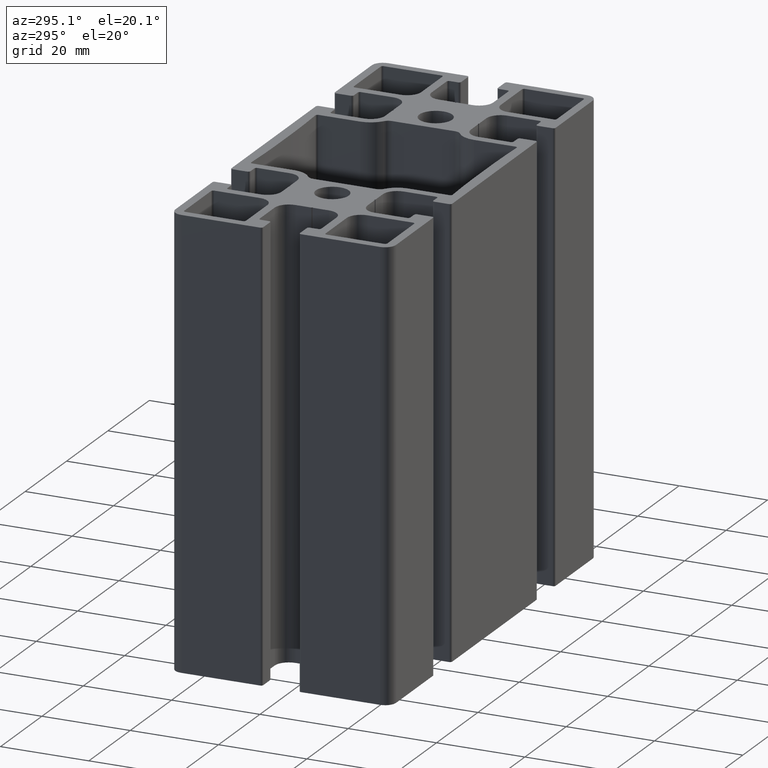
[diagram: clean part render]
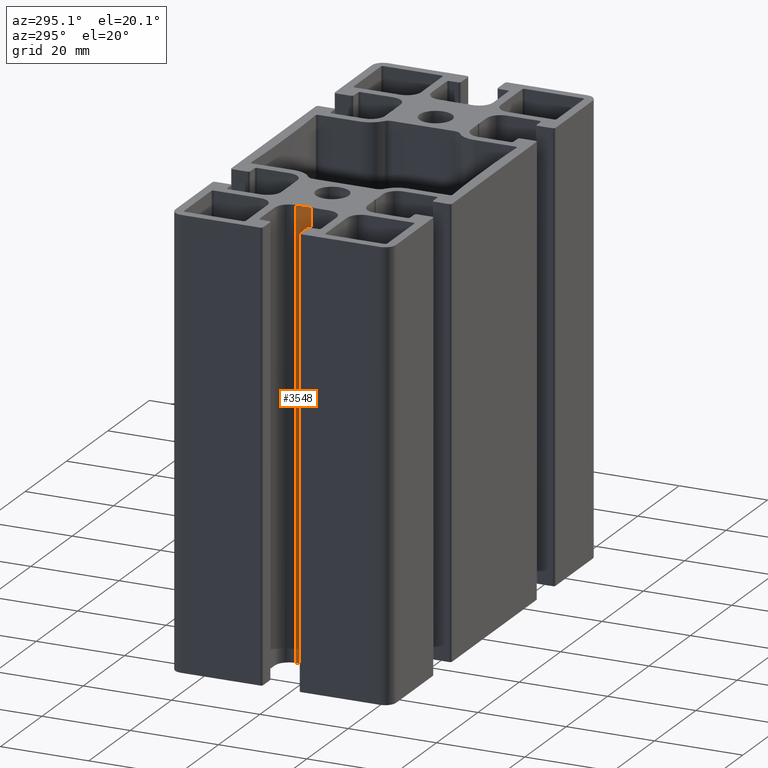
[diagram: same view with one face highlighted and labeled with its STEP entity id]
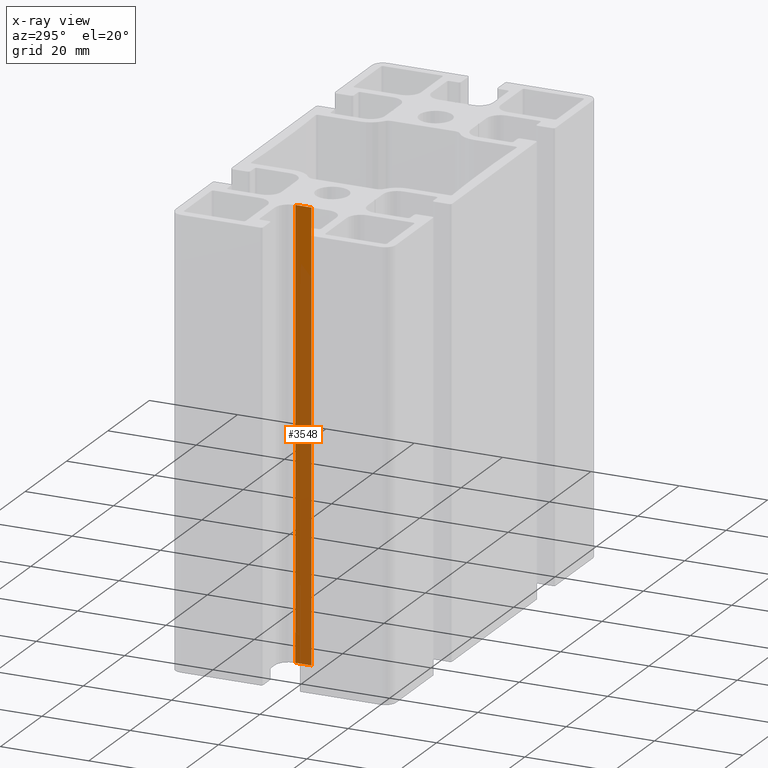
[diagram: x-ray of the same camera — body ghosted, the highlighted face saturated]
A machine part, auxiliary view. The second image highlights one B-rep face of the part: STEP entity #3548.
The next image is the same camera in x-ray: the body ghosted, the highlighted face saturated — about 62% of this face is hidden behind the body in this view.
In plain terms, the highlighted planar face has unit normal (-1, -0, 0).
Its self-contained STEP definition (entity closure, byte-faithful):
#406=FACE_OUTER_BOUND('',#588,.T.);
#588=EDGE_LOOP('',(#2737,#2738,#2739,#2740));
#894=LINE('',#5734,#1254);
#895=LINE('',#5737,#1255);
#896=LINE('',#5739,#1256);
#897=LINE('',#5740,#1257);
#1254=VECTOR('',#4670,100.);
#1255=VECTOR('',#4673,3.60000000002533);
#1256=VECTOR('',#4674,3.60000000002533);
#1257=VECTOR('',#4675,100.);
#1619=VERTEX_POINT('',#5730);
#1620=VERTEX_POINT('',#5732);
#1621=VERTEX_POINT('',#5736);
#1622=VERTEX_POINT('',#5738);
#2090=EDGE_CURVE('',#1619,#1620,#894,.T.);
#2091=EDGE_CURVE('',#1621,#1619,#895,.T.);
#2092=EDGE_CURVE('',#1622,#1620,#896,.T.);
#2093=EDGE_CURVE('',#1621,#1622,#897,.T.);
#2737=ORIENTED_EDGE('',*,*,#2091,.T.);
#2738=ORIENTED_EDGE('',*,*,#2090,.T.);
#2739=ORIENTED_EDGE('',*,*,#2092,.F.);
#2740=ORIENTED_EDGE('',*,*,#2093,.F.);
#3394=PLANE('',#3850);
#3548=ADVANCED_FACE('',(#406),#3394,.T.);
#3850=AXIS2_PLACEMENT_3D('',#5735,#4671,#4672);
#4670=DIRECTION('',(0.,0.,1.));
#4671=DIRECTION('center_axis',(-1.,-7.03141248924319E-12,0.));
#4672=DIRECTION('ref_axis',(7.03153091308195E-12,-1.,0.));
#4673=DIRECTION('',(7.03141248924319E-12,-1.,0.));
#4674=DIRECTION('',(7.03141248924319E-12,-1.,0.));
#4675=DIRECTION('',(0.,0.,1.));
#5730=CARTESIAN_POINT('',(-34.6999999999875,0.19999999997701,0.));
#5732=CARTESIAN_POINT('',(-34.6999999999875,0.19999999997701,100.));
#5734=CARTESIAN_POINT('',(-34.6999999999875,0.19999999997701,0.));
#5735=CARTESIAN_POINT('Origin',(-34.7000000000128,3.80000000000233,0.));
#5736=CARTESIAN_POINT('',(-34.7000000000128,3.80000000000233,0.));
#5737=CARTESIAN_POINT('',(-34.7000000000128,3.80000000000233,0.));
#5738=CARTESIAN_POINT('',(-34.7000000000128,3.80000000000233,100.));
#5739=CARTESIAN_POINT('',(-34.7000000000128,3.80000000000233,100.));
#5740=CARTESIAN_POINT('',(-34.7000000000128,3.80000000000233,0.));